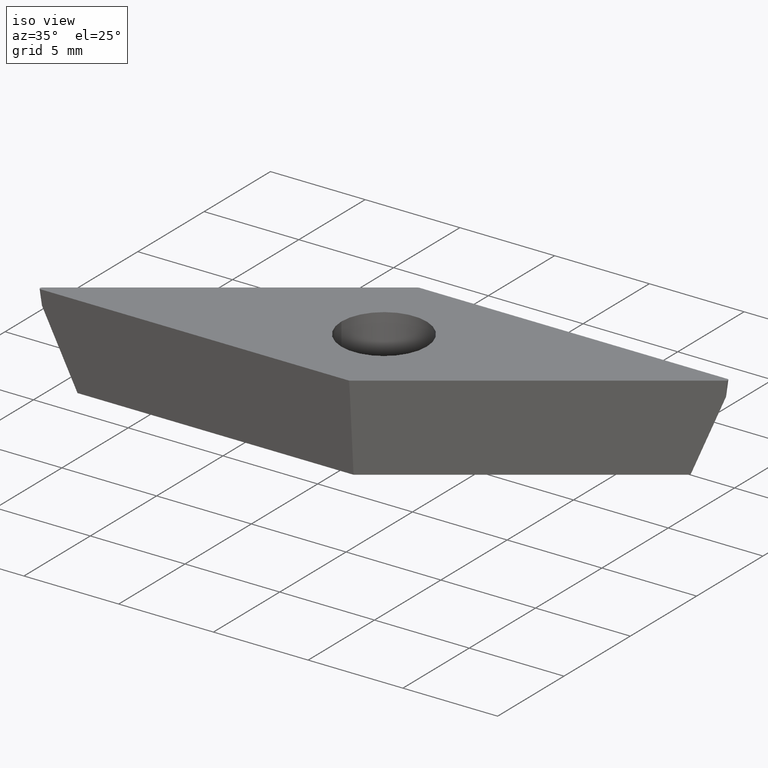
[diagram: clean part render]
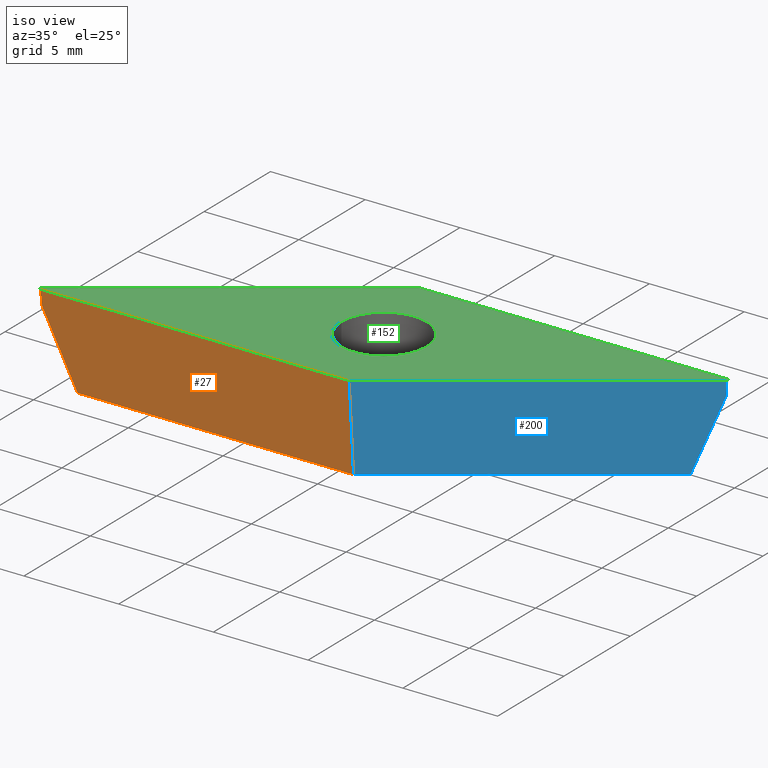
[diagram: same view with three faces highlighted in distinct colors, each labeled with its STEP entity id]
A machine part, iso view with three faces highlighted in distinct colors.
Their STEP definitions:

[orange] entity #27 — the highlighted face is a freeform B-spline surface patch.
#25 = VECTOR ( 'NONE', #125, 1000.000000000000000 ) ;
#27 = ADVANCED_FACE ( 'NONE', ( #216 ), #476, .T. ) ;
#64 = CARTESIAN_POINT ( 'NONE',  ( -13.25106736044395100, -4.178045490102173100, -4.760000000000000700 ) ) ;
#92 = B_SPLINE_CURVE_WITH_KNOTS ( 'NONE', 3,
 ( #379, #367, #363, #361, #359, #357, #355 ),
 .UNSPECIFIED., .F., .F.,
 ( 4, 3, 4 ),
 ( 0.0000000000000000000, 0.001989064735450687800, 0.003978129470901375600 ),
 .UNSPECIFIED. ) ;
#93 = CARTESIAN_POINT ( 'NONE',  ( 1.317332682910368400, -4.178045490102174900, -4.759999999999999800 ) ) ;
#95 = CARTESIAN_POINT ( 'NONE',  ( -14.78756076601861700, -4.762500000000002000, 0.0000000000000000000 ) ) ;
#111 = CARTESIAN_POINT ( 'NONE',  ( -14.78756076601861700, -4.762500000000002000, 0.0000000000000000000 ) ) ;
#112 = VECTOR ( 'NONE', #261, 1000.000000000000000 ) ;
#125 = DIRECTION ( 'NONE',  ( 1.000000000000000000, 5.223078789528969500E-017, -0.0000000000000000000 ) ) ;
#133 = CARTESIAN_POINT ( 'NONE',  ( -13.25106736044395100, -4.178045490102173100, -4.760000000000000700 ) ) ;
#137 = VECTOR ( 'NONE', #302, 1000.000000000000000 ) ;
#146 = CARTESIAN_POINT ( 'NONE',  ( 1.317332682910368400, -4.178045490102174900, -4.759999999999999800 ) ) ;
#149 = LINE ( 'NONE', #206, #25 ) ;
#165 = LINE ( 'NONE', #284, #137 ) ;
#166 = CARTESIAN_POINT ( 'NONE',  ( 1.470080603148244300, -4.662500000000002300, -0.8144346427974711300 ) ) ;
#183 = LINE ( 'NONE', #251, #112 ) ;
#201 = EDGE_CURVE ( 'NONE', #381, #405, #149, .T. ) ;
#205 = CARTESIAN_POINT ( 'NONE',  ( -13.25106736044395100, -4.178045490102173100, -4.760000000000000700 ) ) ;
#206 = CARTESIAN_POINT ( 'NONE',  ( 1.501610482036145800, -4.762500000000001100, 0.0000000000000000000 ) ) ;
#216 = FACE_OUTER_BOUND ( 'NONE', #315, .T. ) ;
#226 = CARTESIAN_POINT ( 'NONE',  ( -13.76323182896872400, -4.339530326734789300, -3.444811547599106600 ) ) ;
#243 = CARTESIAN_POINT ( 'NONE',  ( -13.50714959470632000, -4.258787908418481600, -4.102405773799547200 ) ) ;
#246 = CARTESIAN_POINT ( 'NONE',  ( -8.394934012659177800, -4.178045490102174900, -4.759999999999999800 ) ) ;
#247 = CARTESIAN_POINT ( 'NONE',  ( -14.53147853175609500, -4.581757581683702600, -1.472028868997844500 ) ) ;
#248 = CARTESIAN_POINT ( 'NONE',  ( -14.27539629749361300, -4.501015163367400300, -2.129623095198255100 ) ) ;
#249 = EDGE_CURVE ( 'NONE', #452, #405, #165, .T. ) ;
#250 = CARTESIAN_POINT ( 'NONE',  ( -14.01931406323116700, -4.420272745051095200, -2.787217321398681100 ) ) ;
#251 = CARTESIAN_POINT ( 'NONE',  ( -14.78756076601861700, -4.762500000000002000, 0.0000000000000000000 ) ) ;
#254 = CARTESIAN_POINT ( 'NONE',  ( -14.78756076601861700, -4.662500000000002300, -0.8144346427974499300 ) ) ;
#261 = DIRECTION ( 'NONE',  ( -6.365331826332493700E-018, 0.1218693434051477400, -0.9925461516413219800 ) ) ;
#262 = CARTESIAN_POINT ( 'NONE',  ( 1.470080603148248500, -4.762500000000001100, 0.0000000000000000000 ) ) ;
#277 = CARTESIAN_POINT ( 'NONE',  ( -14.78756076601861700, -4.662500000000002300, -0.8144346427974499300 ) ) ;
#280 = CARTESIAN_POINT ( 'NONE',  ( -3.538800664874408600, -4.178045490102174000, -4.759999999999999800 ) ) ;
#284 = CARTESIAN_POINT ( 'NONE',  ( 1.470080603148249600, -4.762500000000001100, 0.0000000000000000000 ) ) ;
#285 = CARTESIAN_POINT ( 'NONE',  ( -14.78756076601861700, -4.061154588122609400, -5.711999999999998900 ) ) ;
#298 = CARTESIAN_POINT ( 'NONE',  ( -9.368346976296324500, -4.762500000000002000, 0.0000000000000000000 ) ) ;
#302 = DIRECTION ( 'NONE',  ( 6.365331826332493700E-018, -0.1218693434051477400, 0.9925461516413219800 ) ) ;
#314 = VERTEX_POINT ( 'NONE', #146 ) ;
#315 = EDGE_LOOP ( 'NONE', ( #401, #408, #409, #410, #411, #415 ) ) ;
#321 = EDGE_CURVE ( 'NONE', #473, #314, #374, .T. ) ;
#330 = EDGE_CURVE ( 'NONE', #314, #452, #92, .T. ) ;
#336 = VERTEX_POINT ( 'NONE', #277 ) ;
#355 = CARTESIAN_POINT ( 'NONE',  ( 1.470080603148244300, -4.662500000000002300, -0.8144346427974711300 ) ) ;
#357 = CARTESIAN_POINT ( 'NONE',  ( 1.444622616441935800, -4.581757581683694600, -1.472028868997892200 ) ) ;
#359 = CARTESIAN_POINT ( 'NONE',  ( 1.419164629735622200, -4.501015163367391400, -2.129623095198313300 ) ) ;
#361 = CARTESIAN_POINT ( 'NONE',  ( 1.393706643029309200, -4.420272745051087200, -2.787217321398734800 ) ) ;
#363 = CARTESIAN_POINT ( 'NONE',  ( 1.368248656322996300, -4.339530326734783100, -3.444811547599155900 ) ) ;
#367 = CARTESIAN_POINT ( 'NONE',  ( 1.342790669616680300, -4.258787908418479900, -4.102405773799578300 ) ) ;
#374 = B_SPLINE_CURVE_WITH_KNOTS ( 'NONE', 3,
 ( #133, #246, #280, #93 ),
 .UNSPECIFIED., .F., .F.,
 ( 4, 4 ),
 ( 0.0000000000000000000, 0.01456840004335432100 ),
 .UNSPECIFIED. ) ;
#377 = B_SPLINE_CURVE_WITH_KNOTS ( 'NONE', 3,
 ( #205, #243, #226, #250, #248, #247, #254 ),
 .UNSPECIFIED., .F., .F.,
 ( 4, 3, 4 ),
 ( 0.0000000000000000000, 0.002130903220789934900, 0.004261806441579869800 ),
 .UNSPECIFIED. ) ;
#379 = CARTESIAN_POINT ( 'NONE',  ( 1.317332682910368400, -4.178045490102174900, -4.759999999999999800 ) ) ;
#381 = VERTEX_POINT ( 'NONE', #95 ) ;
#393 = CARTESIAN_POINT ( 'NONE',  ( -3.949133186574043100, -4.762500000000001100, 0.0000000000000000000 ) ) ;
#401 = ORIENTED_EDGE ( 'NONE', *, *, #321, .T. ) ;
#402 = EDGE_CURVE ( 'NONE', #473, #336, #377, .T. ) ;
#405 = VERTEX_POINT ( 'NONE', #262 ) ;
#408 = ORIENTED_EDGE ( 'NONE', *, *, #330, .T. ) ;
#409 = ORIENTED_EDGE ( 'NONE', *, *, #249, .T. ) ;
#410 = ORIENTED_EDGE ( 'NONE', *, *, #201, .F. ) ;
#411 = ORIENTED_EDGE ( 'NONE', *, *, #412, .T. ) ;
#412 = EDGE_CURVE ( 'NONE', #381, #336, #183, .T. ) ;
#415 = ORIENTED_EDGE ( 'NONE', *, *, #402, .F. ) ;
#416 = CARTESIAN_POINT ( 'NONE',  ( 1.470080603148249600, -4.061154588122608500, -5.711999999999998900 ) ) ;
#417 = CARTESIAN_POINT ( 'NONE',  ( -3.949133186574043100, -4.061154588122608500, -5.711999999999998900 ) ) ;
#435 = CARTESIAN_POINT ( 'NONE',  ( -9.368346976296324500, -4.061154588122609400, -5.711999999999998900 ) ) ;
#452 = VERTEX_POINT ( 'NONE', #166 ) ;
#458 = CARTESIAN_POINT ( 'NONE',  ( 1.470080603148249600, -4.762500000000001100, 0.0000000000000000000 ) ) ;
#473 = VERTEX_POINT ( 'NONE', #64 ) ;
#476 = B_SPLINE_SURFACE_WITH_KNOTS ( 'NONE', 1, 3, ( 
 ( #111, #298, #393, #458 ),
 ( #285, #435, #417, #416 ) ),
 .UNSPECIFIED., .F., .F., .F.,
 ( 2, 2 ),
 ( 4, 4 ),
 ( 0.0000000000000000000, 1.000000000000000000 ),
 ( -0.01628917124805476200, -3.152987888789733100E-005 ),
 .UNSPECIFIED. ) ;

[blue] entity #200 — the highlighted face is a freeform B-spline surface patch.
#2 = VECTOR ( 'NONE', #94, 1000.000000000000100 ) ;
#20 = CARTESIAN_POINT ( 'NONE',  ( 5.564323099076069000, -1.061573343201182000, -5.711999999999998900 ) ) ;
#33 = CARTESIAN_POINT ( 'NONE',  ( 14.84491840965371900, 4.580584795571104100, 0.0000000000000000000 ) ) ;
#36 = VERTEX_POINT ( 'NONE', #139 ) ;
#46 = LINE ( 'NONE', #105, #2 ) ;
#50 = B_SPLINE_CURVE_WITH_KNOTS ( 'NONE', 3,
 ( #404, #371, #239, #273 ),
 .UNSPECIFIED., .F., .F.,
 ( 4, 4 ),
 ( 4.336808689942017700E-019, 0.01456840004335754200 ),
 .UNSPECIFIED. ) ;
#92 = B_SPLINE_CURVE_WITH_KNOTS ( 'NONE', 3,
 ( #379, #367, #363, #361, #359, #357, #355 ),
 .UNSPECIFIED., .F., .F.,
 ( 4, 3, 4 ),
 ( 0.0000000000000000000, 0.001989064735450687800, 0.003978129470901375600 ),
 .UNSPECIFIED. ) ;
#94 = DIRECTION ( 'NONE',  ( 0.8191520442889945700, 0.5735764363510419400, -0.0000000000000000000 ) ) ;
#105 = CARTESIAN_POINT ( 'NONE',  ( 15.10472024625493900, 4.762500000000003700, 0.0000000000000000000 ) ) ;
#124 = VERTEX_POINT ( 'NONE', #309 ) ;
#126 = CARTESIAN_POINT ( 'NONE',  ( 14.78756076601861500, 4.662500000000004100, -0.8144346427974578100 ) ) ;
#139 = CARTESIAN_POINT ( 'NONE',  ( 14.84491840965371900, 4.580584795571104100, 0.0000000000000000000 ) ) ;
#140 = CARTESIAN_POINT ( 'NONE',  ( 14.84491840965371900, 4.580584795571104100, 0.0000000000000000000 ) ) ;
#142 = EDGE_CURVE ( 'NONE', #314, #124, #50, .T. ) ;
#144 = LINE ( 'NONE', #140, #153 ) ;
#146 = CARTESIAN_POINT ( 'NONE',  ( 1.317332682910368400, -4.178045490102174900, -4.759999999999999800 ) ) ;
#151 = CARTESIAN_POINT ( 'NONE',  ( 1.527438246783349800, -4.744415204428903200, 0.0000000000000000000 ) ) ;
#153 = VECTOR ( 'NONE', #160, 1000.000000000000000 ) ;
#160 = DIRECTION ( 'NONE',  ( 0.06990138369076599700, -0.09982952178648427100, 0.9925461516413219800 ) ) ;
#161 = CARTESIAN_POINT ( 'NONE',  ( 13.50714959470895600, 4.258787908418492300, -4.102405773799485900 ) ) ;
#166 = CARTESIAN_POINT ( 'NONE',  ( 1.470080603148244300, -4.662500000000002300, -0.8144346427974711300 ) ) ;
#169 = CARTESIAN_POINT ( 'NONE',  ( 13.25106736044730100, 4.178045490102176600, -4.759999999999998900 ) ) ;
#175 = VECTOR ( 'NONE', #222, 1000.000000000000000 ) ;
#181 = CARTESIAN_POINT ( 'NONE',  ( 14.78756076601861500, 4.662500000000004100, -0.8144346427974578100 ) ) ;
#187 = LINE ( 'NONE', #151, #175 ) ;
#188 = FACE_OUTER_BOUND ( 'NONE', #319, .T. ) ;
#189 = CARTESIAN_POINT ( 'NONE',  ( 13.76323182897069600, 4.339530326734805300, -3.444811547599007100 ) ) ;
#193 = CARTESIAN_POINT ( 'NONE',  ( 14.53147853175643400, 4.581757581683713300, -1.472028868997768100 ) ) ;
#194 = CARTESIAN_POINT ( 'NONE',  ( 14.27539629749443700, 4.501015163367415400, -2.129623095198148100 ) ) ;
#197 = CARTESIAN_POINT ( 'NONE',  ( 14.01931406323256700, 4.420272745051110300, -2.787217321398577100 ) ) ;
#200 = ADVANCED_FACE ( 'NONE', ( #188 ), #230, .T. ) ;
#222 = DIRECTION ( 'NONE',  ( -0.06990138369076599700, 0.09982952178648427100, -0.9925461516413219800 ) ) ;
#230 = B_SPLINE_SURFACE_WITH_KNOTS ( 'NONE', 1, 3, ( 
 ( #306, #271, #299, #33 ),
 ( #480, #20, #472, #469 ) ),
 .UNSPECIFIED., .F., .F., .F.,
 ( 2, 2 ),
 ( 4, 4 ),
 ( 0.0000000000000000000, 1.000000000000000000 ),
 ( -0.01657480084940319100, -0.0003171594802363237100 ),
 .UNSPECIFIED. ) ;
#239 = CARTESIAN_POINT ( 'NONE',  ( 9.273155801270123200, 1.392681830031484900, -4.759999999999998900 ) ) ;
#267 = B_SPLINE_CURVE_WITH_KNOTS ( 'NONE', 3,
 ( #169, #161, #189, #197, #194, #193, #126 ),
 .UNSPECIFIED., .F., .F.,
 ( 4, 3, 4 ),
 ( 0.0000000000000000000, 0.002130903220789326900, 0.004261806441578652000 ),
 .UNSPECIFIED. ) ;
#271 = CARTESIAN_POINT ( 'NONE',  ( 5.966598301071854800, -1.636081871093256300, 0.0000000000000000000 ) ) ;
#273 = CARTESIAN_POINT ( 'NONE',  ( 13.25106736044730100, 4.178045490102176600, -4.759999999999998900 ) ) ;
#299 = CARTESIAN_POINT ( 'NONE',  ( 10.40575835536300700, 1.472251462238612300, 0.0000000000000000000 ) ) ;
#306 = CARTESIAN_POINT ( 'NONE',  ( 1.527438246783349800, -4.744415204428903200, 0.0000000000000000000 ) ) ;
#309 = CARTESIAN_POINT ( 'NONE',  ( 13.25106736044730100, 4.178045490102176600, -4.759999999999998900 ) ) ;
#314 = VERTEX_POINT ( 'NONE', #146 ) ;
#319 = EDGE_LOOP ( 'NONE', ( #380, #382, #388, #395, #397, #398 ) ) ;
#328 = VERTEX_POINT ( 'NONE', #390 ) ;
#330 = EDGE_CURVE ( 'NONE', #314, #452, #92, .T. ) ;
#355 = CARTESIAN_POINT ( 'NONE',  ( 1.470080603148244300, -4.662500000000002300, -0.8144346427974711300 ) ) ;
#357 = CARTESIAN_POINT ( 'NONE',  ( 1.444622616441935800, -4.581757581683694600, -1.472028868997892200 ) ) ;
#359 = CARTESIAN_POINT ( 'NONE',  ( 1.419164629735622200, -4.501015163367391400, -2.129623095198313300 ) ) ;
#361 = CARTESIAN_POINT ( 'NONE',  ( 1.393706643029309200, -4.420272745051087200, -2.787217321398734800 ) ) ;
#363 = CARTESIAN_POINT ( 'NONE',  ( 1.368248656322996300, -4.339530326734783100, -3.444811547599155900 ) ) ;
#367 = CARTESIAN_POINT ( 'NONE',  ( 1.342790669616680300, -4.258787908418479900, -4.102405773799578300 ) ) ;
#371 = CARTESIAN_POINT ( 'NONE',  ( 5.295244242087762600, -1.392681830031792700, -4.759999999999998900 ) ) ;
#379 = CARTESIAN_POINT ( 'NONE',  ( 1.317332682910368400, -4.178045490102174900, -4.759999999999999800 ) ) ;
#380 = ORIENTED_EDGE ( 'NONE', *, *, #444, .F. ) ;
#382 = ORIENTED_EDGE ( 'NONE', *, *, #396, .T. ) ;
#388 = ORIENTED_EDGE ( 'NONE', *, *, #330, .F. ) ;
#390 = CARTESIAN_POINT ( 'NONE',  ( 1.527438246783351400, -4.744415204428901400, 0.0000000000000000000 ) ) ;
#395 = ORIENTED_EDGE ( 'NONE', *, *, #142, .T. ) ;
#396 = EDGE_CURVE ( 'NONE', #328, #452, #187, .T. ) ;
#397 = ORIENTED_EDGE ( 'NONE', *, *, #423, .T. ) ;
#398 = ORIENTED_EDGE ( 'NONE', *, *, #426, .T. ) ;
#404 = CARTESIAN_POINT ( 'NONE',  ( 1.317332682910368400, -4.178045490102174900, -4.759999999999999800 ) ) ;
#423 = EDGE_CURVE ( 'NONE', #124, #449, #267, .T. ) ;
#426 = EDGE_CURVE ( 'NONE', #449, #36, #144, .T. ) ;
#444 = EDGE_CURVE ( 'NONE', #328, #36, #46, .T. ) ;
#449 = VERTEX_POINT ( 'NONE', #181 ) ;
#452 = VERTEX_POINT ( 'NONE', #166 ) ;
#469 = CARTESIAN_POINT ( 'NONE',  ( 14.44264320765793000, 5.155093323463177900, -5.711999999999998900 ) ) ;
#472 = CARTESIAN_POINT ( 'NONE',  ( 10.00348315337163100, 2.046759990124374700, -5.711999999999998900 ) ) ;
#480 = CARTESIAN_POINT ( 'NONE',  ( 1.125163044787560900, -4.169906676536831100, -5.711999999999998900 ) ) ;

[green] entity #152 — the highlighted planar face has unit normal (0, 0, -1).
#2 = VECTOR ( 'NONE', #94, 1000.000000000000100 ) ;
#25 = VECTOR ( 'NONE', #125, 1000.000000000000000 ) ;
#26 = EDGE_LOOP ( 'NONE', ( #442, #465 ) ) ;
#29 = VERTEX_POINT ( 'NONE', #287 ) ;
#36 = VERTEX_POINT ( 'NONE', #139 ) ;
#42 = VECTOR ( 'NONE', #212, 1000.000000000000100 ) ;
#46 = LINE ( 'NONE', #105, #2 ) ;
#53 = CARTESIAN_POINT ( 'NONE',  ( -1.527438246783353200, 4.744415204428900500, 0.0000000000000000000 ) ) ;
#60 = DIRECTION ( 'NONE',  ( -1.000000000000000000, 0.0000000000000000000, 0.0000000000000000000 ) ) ;
#61 = DIRECTION ( 'NONE',  ( -0.0000000000000000000, -0.0000000000000000000, 1.000000000000000000 ) ) ;
#62 = CARTESIAN_POINT ( 'NONE',  ( -14.78756076601861800, -4.662500000000001400, 0.0000000000000000000 ) ) ;
#68 = ORIENTED_EDGE ( 'NONE', *, *, #428, .T. ) ;
#73 = VERTEX_POINT ( 'NONE', #276 ) ;
#76 = CARTESIAN_POINT ( 'NONE',  ( 1.470080603148248500, -4.662500000000000500, 0.0000000000000000000 ) ) ;
#84 = DIRECTION ( 'NONE',  ( -1.000000000000000000, -2.611539394764484900E-016, -0.0000000000000000000 ) ) ;
#91 = CIRCLE ( 'NONE', #386, 0.09999999999999939500 ) ;
#94 = DIRECTION ( 'NONE',  ( 0.8191520442889945700, 0.5735764363510419400, -0.0000000000000000000 ) ) ;
#95 = CARTESIAN_POINT ( 'NONE',  ( -14.78756076601861700, -4.762500000000002000, 0.0000000000000000000 ) ) ;
#97 = CARTESIAN_POINT ( 'NONE',  ( -1.501610482036148000, 4.762499999999999300, 0.0000000000000000000 ) ) ;
#105 = CARTESIAN_POINT ( 'NONE',  ( 15.10472024625493900, 4.762500000000003700, 0.0000000000000000000 ) ) ;
#115 = DIRECTION ( 'NONE',  ( -0.0000000000000000000, -0.0000000000000000000, 1.000000000000000000 ) ) ;
#122 = DIRECTION ( 'NONE',  ( -1.000000000000000000, 0.0000000000000000000, 0.0000000000000000000 ) ) ;
#125 = DIRECTION ( 'NONE',  ( 1.000000000000000000, 5.223078789528969500E-017, -0.0000000000000000000 ) ) ;
#132 = CIRCLE ( 'NONE', #326, 0.1000000000000000500 ) ;
#135 = DIRECTION ( 'NONE',  ( -1.000000000000000000, 0.0000000000000000000, 0.0000000000000000000 ) ) ;
#136 = CARTESIAN_POINT ( 'NONE',  ( -14.84491840965372200, -4.580584795571102300, 0.0000000000000000000 ) ) ;
#139 = CARTESIAN_POINT ( 'NONE',  ( 14.84491840965371900, 4.580584795571104100, 0.0000000000000000000 ) ) ;
#141 = CARTESIAN_POINT ( 'NONE',  ( 2.250000000000000000, 0.0000000000000000000, 0.0000000000000000000 ) ) ;
#143 = CARTESIAN_POINT ( 'NONE',  ( 14.78756076601861500, 4.662500000000003200, 0.0000000000000000000 ) ) ;
#149 = LINE ( 'NONE', #206, #25 ) ;
#150 = DIRECTION ( 'NONE',  ( -1.000000000000000000, -8.673617379884030700E-015, 0.0000000000000000000 ) ) ;
#152 = ADVANCED_FACE ( 'NONE', ( #353, #375 ), #316, .F. ) ;
#155 = DIRECTION ( 'NONE',  ( -0.0000000000000000000, -0.0000000000000000000, 1.000000000000000000 ) ) ;
#156 = CARTESIAN_POINT ( 'NONE',  ( 0.0000000000000000000, 0.0000000000000000000, 0.0000000000000000000 ) ) ;
#162 = DIRECTION ( 'NONE',  ( -1.000000000000000000, 8.673617379884030700E-015, 0.0000000000000000000 ) ) ;
#163 = DIRECTION ( 'NONE',  ( -0.0000000000000000000, -0.0000000000000000000, 1.000000000000000000 ) ) ;
#164 = CARTESIAN_POINT ( 'NONE',  ( -1.470080603148250700, 4.662499999999998800, 0.0000000000000000000 ) ) ;
#173 = CIRCLE ( 'NONE', #418, 2.250000000000000000 ) ;
#177 = VECTOR ( 'NONE', #84, 1000.000000000000000 ) ;
#178 = CARTESIAN_POINT ( 'NONE',  ( -2.250000000000000000, 2.755455298081544300E-016, 0.0000000000000000000 ) ) ;
#179 = DIRECTION ( 'NONE',  ( 1.000000000000000000, 0.0000000000000000000, 0.0000000000000000000 ) ) ;
#191 = DIRECTION ( 'NONE',  ( 1.000000000000000000, 0.0000000000000000000, 0.0000000000000000000 ) ) ;
#199 = CIRCLE ( 'NONE', #389, 0.1000000000000000500 ) ;
#201 = EDGE_CURVE ( 'NONE', #381, #405, #149, .T. ) ;
#206 = CARTESIAN_POINT ( 'NONE',  ( 1.501610482036145800, -4.762500000000001100, 0.0000000000000000000 ) ) ;
#208 = LINE ( 'NONE', #263, #42 ) ;
#211 = EDGE_CURVE ( 'NONE', #405, #328, #132, .T. ) ;
#212 = DIRECTION ( 'NONE',  ( -0.8191520442889946900, -0.5735764363510417200, -0.0000000000000000000 ) ) ;
#213 = ORIENTED_EDGE ( 'NONE', *, *, #444, .T. ) ;
#215 = EDGE_CURVE ( 'NONE', #295, #383, #173, .T. ) ;
#227 = DIRECTION ( 'NONE',  ( 0.0000000000000000000, 0.0000000000000000000, 1.000000000000000000 ) ) ;
#228 = CARTESIAN_POINT ( 'NONE',  ( 0.0000000000000000000, 0.0000000000000000000, 0.0000000000000000000 ) ) ;
#233 = CARTESIAN_POINT ( 'NONE',  ( -14.78756076601861800, -4.662500000000001400, 0.0000000000000000000 ) ) ;
#238 = DIRECTION ( 'NONE',  ( -0.0000000000000000000, -0.0000000000000000000, 1.000000000000000000 ) ) ;
#241 = LINE ( 'NONE', #97, #177 ) ;
#244 = CARTESIAN_POINT ( 'NONE',  ( 14.78756076601861500, 4.762500000000003700, 0.0000000000000000000 ) ) ;
#259 = CARTESIAN_POINT ( 'NONE',  ( 0.0000000000000000000, 0.0000000000000000000, 0.0000000000000000000 ) ) ;
#262 = CARTESIAN_POINT ( 'NONE',  ( 1.470080603148248500, -4.762500000000001100, 0.0000000000000000000 ) ) ;
#263 = CARTESIAN_POINT ( 'NONE',  ( -15.10472024625494200, -4.762500000000002000, 0.0000000000000000000 ) ) ;
#276 = CARTESIAN_POINT ( 'NONE',  ( -14.88756076601861800, -4.662500000000001400, 0.0000000000000000000 ) ) ;
#281 = VERTEX_POINT ( 'NONE', #244 ) ;
#287 = CARTESIAN_POINT ( 'NONE',  ( -1.470080603148250700, 4.762499999999999300, 0.0000000000000000000 ) ) ;
#291 = DIRECTION ( 'NONE',  ( -1.000000000000000000, 0.0000000000000000000, -0.0000000000000000000 ) ) ;
#292 = DIRECTION ( 'NONE',  ( 0.0000000000000000000, 0.0000000000000000000, -1.000000000000000000 ) ) ;
#294 = EDGE_CURVE ( 'NONE', #383, #295, #351, .T. ) ;
#295 = VERTEX_POINT ( 'NONE', #178 ) ;
#316 = PLANE ( 'NONE',  #360 ) ;
#317 = EDGE_LOOP ( 'NONE', ( #466, #467, #468, #479, #481, #483, #488, #213, #68 ) ) ;
#326 = AXIS2_PLACEMENT_3D ( 'NONE', #76, #155, #150 ) ;
#328 = VERTEX_POINT ( 'NONE', #390 ) ;
#341 = CIRCLE ( 'NONE', #378, 0.09999999999999939500 ) ;
#343 = EDGE_CURVE ( 'NONE', #484, #73, #341, .T. ) ;
#349 = CIRCLE ( 'NONE', #354, 0.09999999999999939500 ) ;
#351 = CIRCLE ( 'NONE', #400, 2.250000000000000000 ) ;
#353 = FACE_BOUND ( 'NONE', #26, .T. ) ;
#354 = AXIS2_PLACEMENT_3D ( 'NONE', #62, #61, #60 ) ;
#360 = AXIS2_PLACEMENT_3D ( 'NONE', #156, #292, #291 ) ;
#375 = FACE_OUTER_BOUND ( 'NONE', #317, .T. ) ;
#378 = AXIS2_PLACEMENT_3D ( 'NONE', #233, #238, #135 ) ;
#381 = VERTEX_POINT ( 'NONE', #95 ) ;
#383 = VERTEX_POINT ( 'NONE', #141 ) ;
#385 = EDGE_CURVE ( 'NONE', #487, #484, #208, .T. ) ;
#386 = AXIS2_PLACEMENT_3D ( 'NONE', #143, #115, #122 ) ;
#389 = AXIS2_PLACEMENT_3D ( 'NONE', #164, #163, #162 ) ;
#390 = CARTESIAN_POINT ( 'NONE',  ( 1.527438246783351400, -4.744415204428901400, 0.0000000000000000000 ) ) ;
#400 = AXIS2_PLACEMENT_3D ( 'NONE', #228, #227, #191 ) ;
#405 = VERTEX_POINT ( 'NONE', #262 ) ;
#407 = EDGE_CURVE ( 'NONE', #29, #487, #199, .T. ) ;
#418 = AXIS2_PLACEMENT_3D ( 'NONE', #259, #478, #179 ) ;
#428 = EDGE_CURVE ( 'NONE', #36, #281, #91, .T. ) ;
#442 = ORIENTED_EDGE ( 'NONE', *, *, #294, .F. ) ;
#444 = EDGE_CURVE ( 'NONE', #328, #36, #46, .T. ) ;
#453 = EDGE_CURVE ( 'NONE', #281, #29, #241, .T. ) ;
#464 = EDGE_CURVE ( 'NONE', #73, #381, #349, .T. ) ;
#465 = ORIENTED_EDGE ( 'NONE', *, *, #215, .F. ) ;
#466 = ORIENTED_EDGE ( 'NONE', *, *, #453, .T. ) ;
#467 = ORIENTED_EDGE ( 'NONE', *, *, #407, .T. ) ;
#468 = ORIENTED_EDGE ( 'NONE', *, *, #385, .T. ) ;
#478 = DIRECTION ( 'NONE',  ( 0.0000000000000000000, 0.0000000000000000000, 1.000000000000000000 ) ) ;
#479 = ORIENTED_EDGE ( 'NONE', *, *, #343, .T. ) ;
#481 = ORIENTED_EDGE ( 'NONE', *, *, #464, .T. ) ;
#483 = ORIENTED_EDGE ( 'NONE', *, *, #201, .T. ) ;
#484 = VERTEX_POINT ( 'NONE', #136 ) ;
#487 = VERTEX_POINT ( 'NONE', #53 ) ;
#488 = ORIENTED_EDGE ( 'NONE', *, *, #211, .T. ) ;